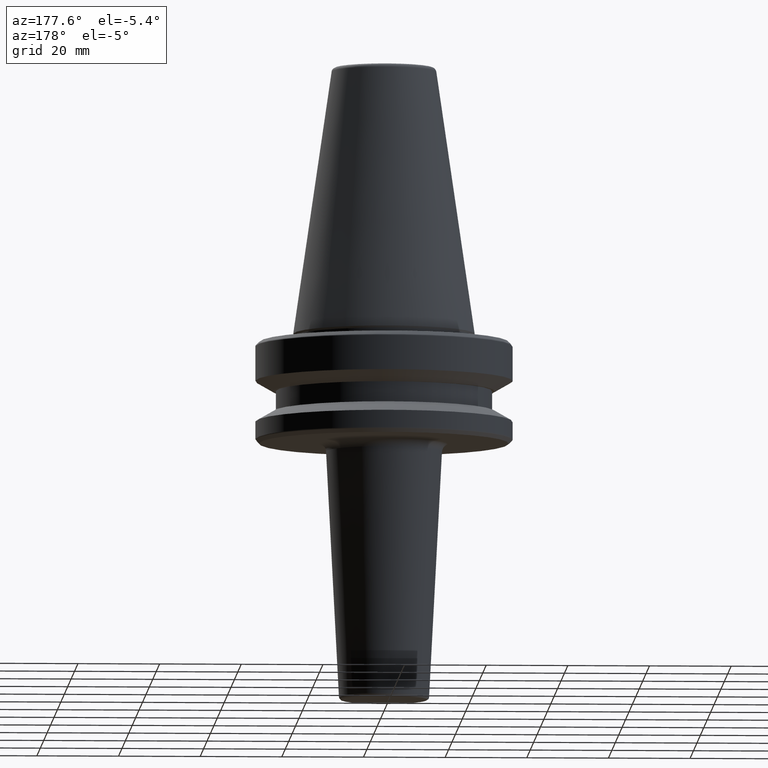
[diagram: clean part render]
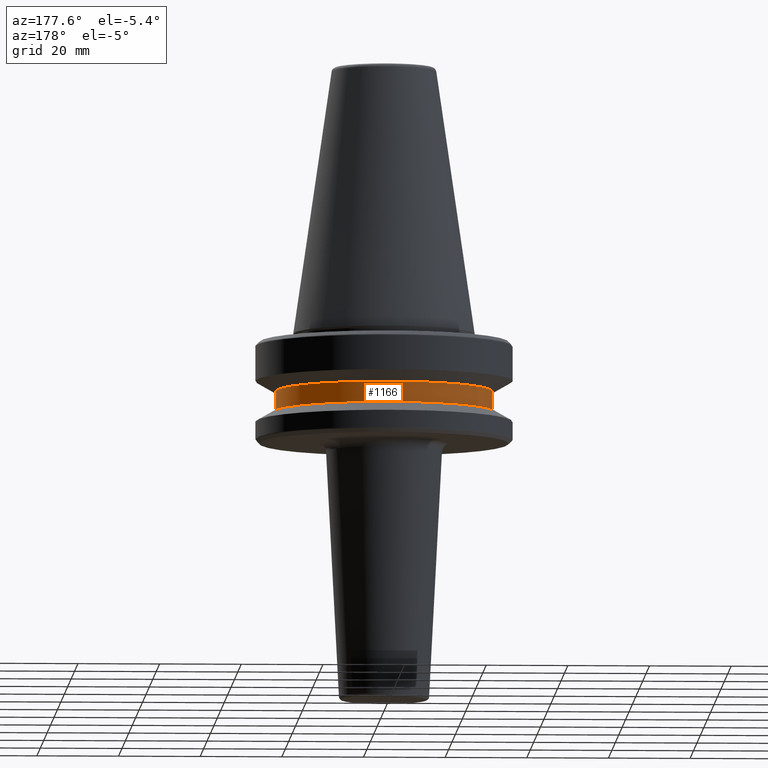
[diagram: same view with one face highlighted and labeled with its STEP entity id]
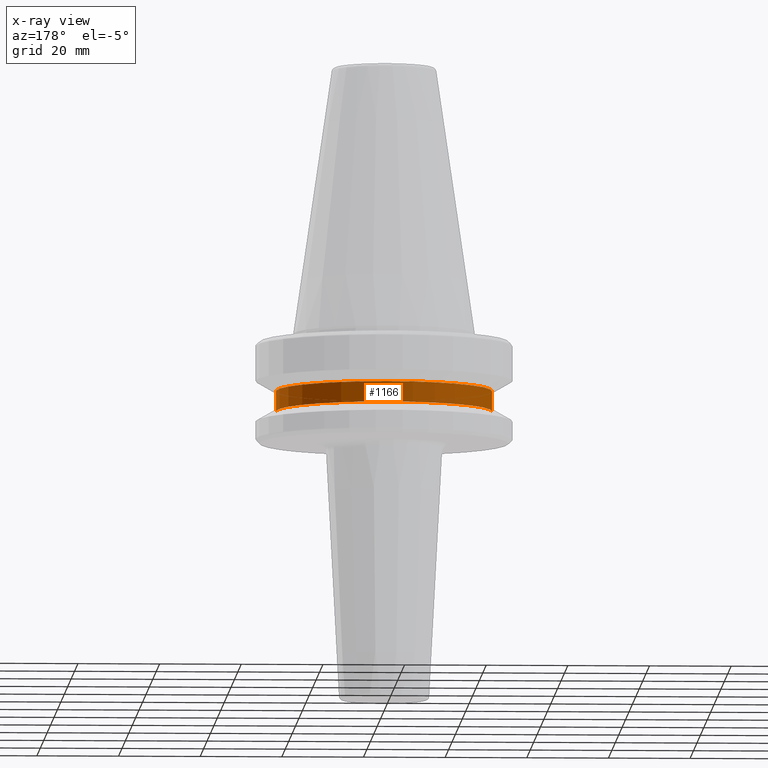
[diagram: x-ray of the same camera — body ghosted, the highlighted face saturated]
A machine part, auxiliary view. The second image highlights one B-rep face of the part: STEP entity #1166.
The next image is the same camera in x-ray: the body ghosted, the highlighted face saturated — about 0% of this face is hidden behind the body in this view.
In plain terms, the highlighted cylindrical surface (partial cylindrical patch) has radius 26.5 mm, axis along (-0, -0, -1).
Its self-contained STEP definition (entity closure, byte-faithful):
#11 = AXIS2_PLACEMENT_3D ( 'NONE', #519, #700, #143 ) ;
#143 = DIRECTION ( 'NONE',  ( -1.000000000000000000, 0.0000000000000000000, 0.0000000000000000000 ) ) ;
#170 = CARTESIAN_POINT ( 'NONE',  ( 26.50000000000000700, 3.245314017740486900E-015, 0.0000000000000000000 ) ) ;
#180 = DIRECTION ( 'NONE',  ( -0.0000000000000000000, -0.0000000000000000000, -1.000000000000000000 ) ) ;
#183 = CYLINDRICAL_SURFACE ( 'NONE', #11, 26.50000000000000700 ) ;
#195 = EDGE_CURVE ( 'NONE', #440, #547, #510, .T. ) ;
#233 = CARTESIAN_POINT ( 'NONE',  ( 0.0000000000000000000, 0.0000000000000000000, -19.09999999999999800 ) ) ;
#259 = DIRECTION ( 'NONE',  ( -0.0000000000000000000, -0.0000000000000000000, -1.000000000000000000 ) ) ;
#265 = DIRECTION ( 'NONE',  ( -0.0000000000000000000, -0.0000000000000000000, -1.000000000000000000 ) ) ;
#268 = CARTESIAN_POINT ( 'NONE',  ( -26.50000000000000700, 0.0000000000000000000, -19.09999999999999800 ) ) ;
#328 = DIRECTION ( 'NONE',  ( -1.000000000000000000, 0.0000000000000000000, 0.0000000000000000000 ) ) ;
#396 = ORIENTED_EDGE ( 'NONE', *, *, #740, .F. ) ;
#417 = VERTEX_POINT ( 'NONE', #770 ) ;
#433 = CIRCLE ( 'NONE', #498, 26.50000000000000700 ) ;
#440 = VERTEX_POINT ( 'NONE', #942 ) ;
#482 = LINE ( 'NONE', #818, #508 ) ;
#498 = AXIS2_PLACEMENT_3D ( 'NONE', #233, #884, #328 ) ;
#508 = VECTOR ( 'NONE', #259, 1000.000000000000000 ) ;
#510 = LINE ( 'NONE', #170, #1030 ) ;
#511 = ORIENTED_EDGE ( 'NONE', *, *, #563, .F. ) ;
#519 = CARTESIAN_POINT ( 'NONE',  ( 0.0000000000000000000, 0.0000000000000000000, 0.0000000000000000000 ) ) ;
#529 = ORIENTED_EDGE ( 'NONE', *, *, #195, .T. ) ;
#547 = VERTEX_POINT ( 'NONE', #621 ) ;
#563 = EDGE_CURVE ( 'NONE', #802, #547, #433, .T. ) ;
#621 = CARTESIAN_POINT ( 'NONE',  ( 26.50000000000000700, 3.245314017740486900E-015, -19.09999999999999800 ) ) ;
#692 = FACE_OUTER_BOUND ( 'NONE', #1126, .T. ) ;
#700 = DIRECTION ( 'NONE',  ( -0.0000000000000000000, -0.0000000000000000000, -1.000000000000000000 ) ) ;
#740 = EDGE_CURVE ( 'NONE', #417, #802, #482, .T. ) ;
#747 = CARTESIAN_POINT ( 'NONE',  ( 0.0000000000000000000, 0.0000000000000000000, -14.10000000000000000 ) ) ;
#770 = CARTESIAN_POINT ( 'NONE',  ( -26.50000000000000700, 0.0000000000000000000, -14.10000000000000000 ) ) ;
#790 = CIRCLE ( 'NONE', #836, 26.50000000000000700 ) ;
#802 = VERTEX_POINT ( 'NONE', #268 ) ;
#818 = CARTESIAN_POINT ( 'NONE',  ( -26.50000000000000700, 0.0000000000000000000, 0.0000000000000000000 ) ) ;
#828 = EDGE_CURVE ( 'NONE', #417, #440, #790, .T. ) ;
#833 = DIRECTION ( 'NONE',  ( -1.000000000000000000, 0.0000000000000000000, 0.0000000000000000000 ) ) ;
#836 = AXIS2_PLACEMENT_3D ( 'NONE', #747, #180, #833 ) ;
#884 = DIRECTION ( 'NONE',  ( -0.0000000000000000000, -0.0000000000000000000, -1.000000000000000000 ) ) ;
#942 = CARTESIAN_POINT ( 'NONE',  ( 26.50000000000000700, 3.245314017740486900E-015, -14.10000000000000000 ) ) ;
#1001 = ORIENTED_EDGE ( 'NONE', *, *, #828, .T. ) ;
#1030 = VECTOR ( 'NONE', #265, 1000.000000000000000 ) ;
#1126 = EDGE_LOOP ( 'NONE', ( #1001, #529, #511, #396 ) ) ;
#1166 = ADVANCED_FACE ( 'NONE', ( #692 ), #183, .T. ) ;